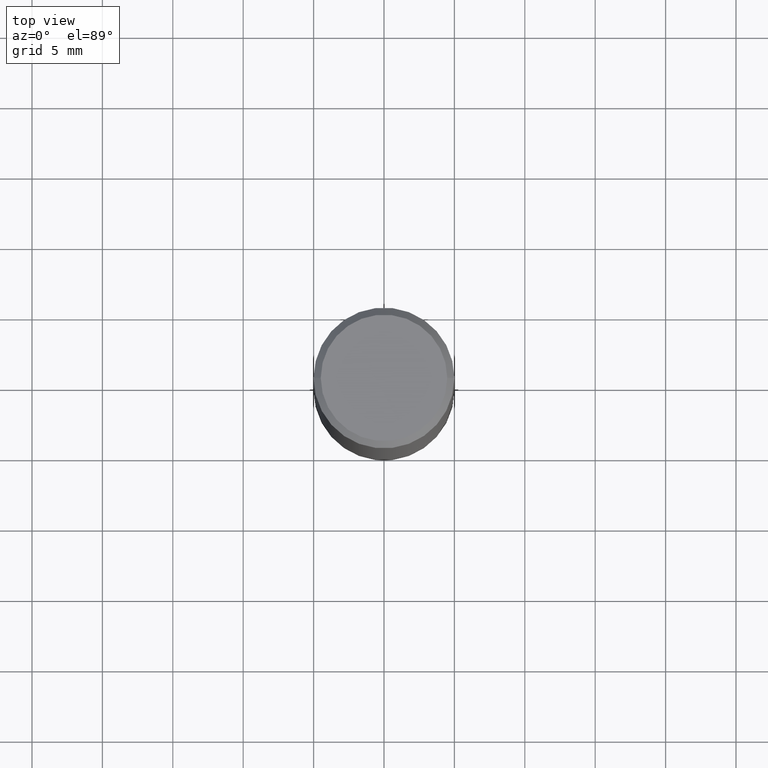
[diagram: clean part render]
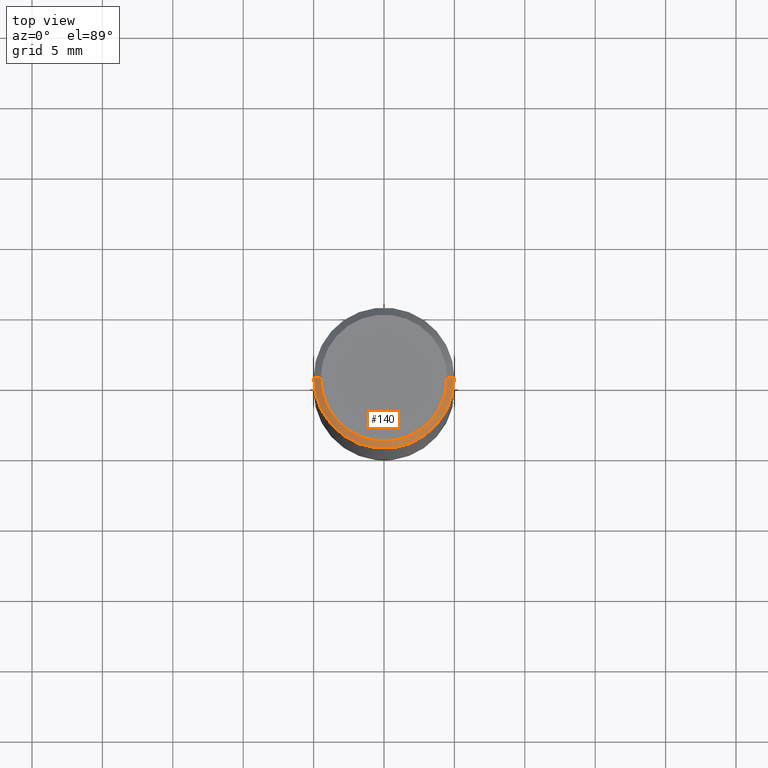
[diagram: same view with one face highlighted and labeled with its STEP entity id]
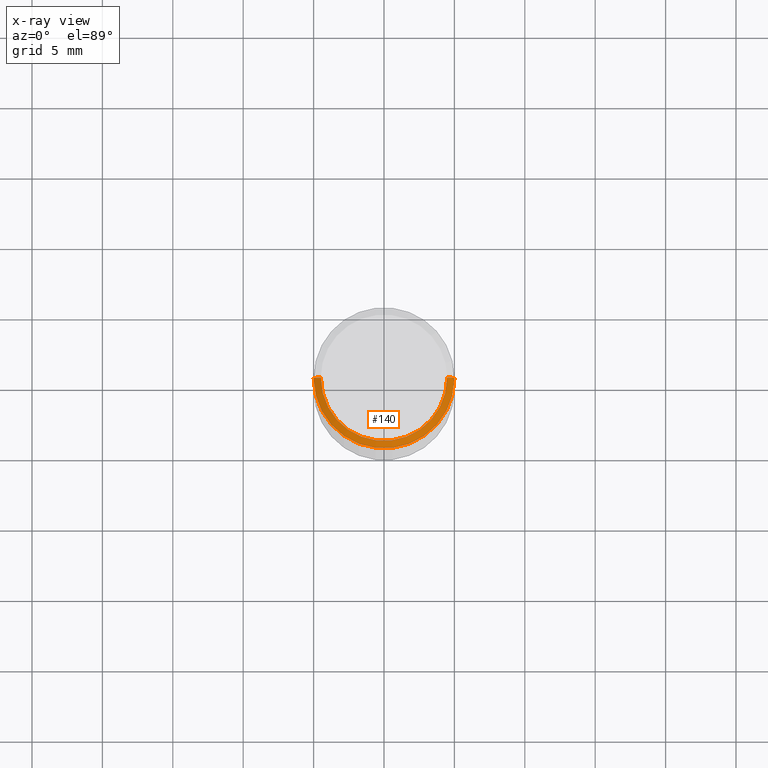
[diagram: x-ray of the same camera — body ghosted, the highlighted face saturated]
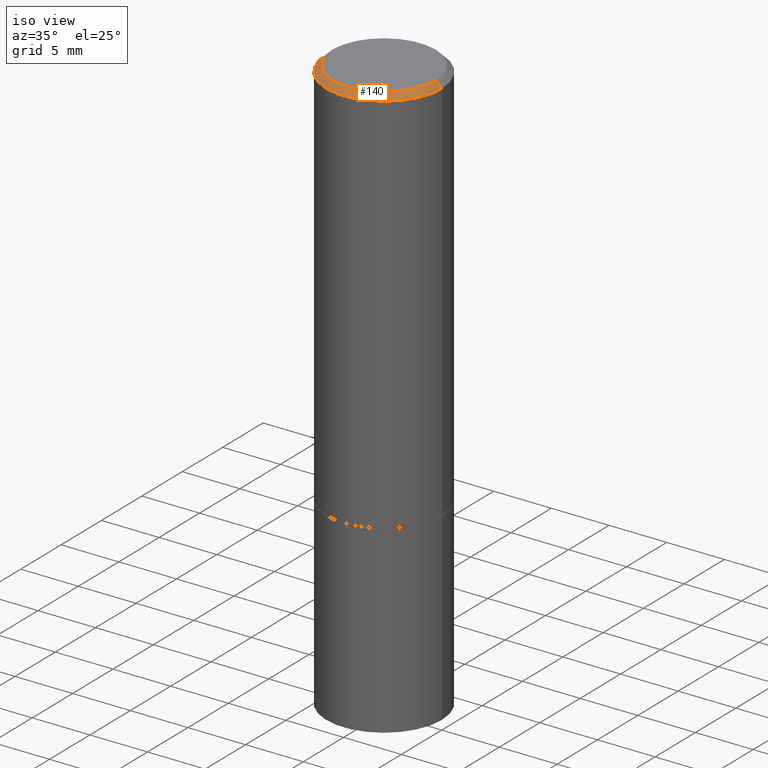
[diagram: same view with one face highlighted and labeled with its STEP entity id]
A machine part, top view. The second image highlights one B-rep face of the part: STEP entity #140.
The next image is the same camera in x-ray: the body ghosted, the highlighted face saturated — about 0% of this face is hidden behind the body in this view.
A second angle (iso view) of the same face is appended — the face is thin or edge-on in the first view.
In plain terms, the highlighted conical surface has half-angle 45 deg.
Its self-contained STEP definition (entity closure, byte-faithful):
#4 = DIRECTION ( 'NONE',  ( 1.000000000000000000, -6.982962677686266711E-15, 0.000000000000000000 ) ) ;
#7 = CARTESIAN_POINT ( 'NONE',  ( 0.1768499999999998407, -1.316798864272041155E-15, 8.922390245354091239E-30 ) ) ;
#20 = EDGE_CURVE ( 'NONE', #359, #111, #204, .T. ) ;
#26 = DIRECTION ( 'NONE',  ( 2.445468806185136597E-29, -3.491481338843145583E-15, -1.000000000000000000 ) ) ;
#38 = ORIENTED_EDGE ( 'NONE', *, *, #51, .F. ) ;
#41 = ORIENTED_EDGE ( 'NONE', *, *, #265, .F. ) ;
#45 = VECTOR ( 'NONE', #139, 39.37007874015748143 ) ;
#51 = EDGE_CURVE ( 'NONE', #86, #305, #287, .T. ) ;
#53 = CARTESIAN_POINT ( 'NONE',  ( 0.1968499999999998307, -1.420318657638187938E-15, -0.02000000000000004552 ) ) ;
#64 = CIRCLE ( 'NONE', #315, 0.1768499999999998407 ) ;
#66 = DIRECTION ( 'NONE',  ( -1.000000000000000000, 6.982962677686266711E-15, 0.000000000000000000 ) ) ;
#83 = DIRECTION ( 'NONE',  ( -0.7071067811865465735, 2.468850131082246805E-15, -0.7071067811865484609 ) ) ;
#86 = VERTEX_POINT ( 'NONE', #7 ) ;
#89 = CARTESIAN_POINT ( 'NONE',  ( 0.1968499999999998307, -1.420318657638187938E-15, -0.02000000000000004552 ) ) ;
#111 = VERTEX_POINT ( 'NONE', #316 ) ;
#119 = CARTESIAN_POINT ( 'NONE',  ( -0.1768499999999998407, 1.269851762937246464E-15, -8.758475317130876682E-30 ) ) ;
#120 = CARTESIAN_POINT ( 'NONE',  ( 4.890937612370284544E-31, -6.982962677686307633E-17, -0.02000000000000004552 ) ) ;
#130 = EDGE_CURVE ( 'NONE', #111, #305, #194, .T. ) ;
#139 = DIRECTION ( 'NONE',  ( 0.7071067811865465735, -7.319954787623252890E-15, -0.7071067811865484609 ) ) ;
#140 = ADVANCED_FACE ( 'NONE', ( #273 ), #337, .T. ) ;
#167 = ORIENTED_EDGE ( 'NONE', *, *, #130, .T. ) ;
#191 = CARTESIAN_POINT ( 'NONE',  ( 0.000000000000000000, 0.000000000000000000, 0.000000000000000000 ) ) ;
#194 = CIRCLE ( 'NONE', #200, 0.1968499999999998307 ) ;
#199 = CARTESIAN_POINT ( 'NONE',  ( -0.1968499999999998307, 1.304766576325677324E-15, -0.02000000000000004552 ) ) ;
#200 = AXIS2_PLACEMENT_3D ( 'NONE', #120, #314, #4 ) ;
#204 = LINE ( 'NONE', #199, #209 ) ;
#206 = EDGE_LOOP ( 'NONE', ( #38, #41, #311, #167 ) ) ;
#209 = VECTOR ( 'NONE', #83, 39.37007874015748143 ) ;
#265 = EDGE_CURVE ( 'NONE', #359, #86, #64, .T. ) ;
#273 = FACE_OUTER_BOUND ( 'NONE', #206, .T. ) ;
#287 = LINE ( 'NONE', #53, #45 ) ;
#302 = AXIS2_PLACEMENT_3D ( 'NONE', #317, #26, #66 ) ;
#303 = DIRECTION ( 'NONE',  ( -2.445468806185136597E-29, 3.491481338843145583E-15, 1.000000000000000000 ) ) ;
#305 = VERTEX_POINT ( 'NONE', #89 ) ;
#311 = ORIENTED_EDGE ( 'NONE', *, *, #20, .T. ) ;
#314 = DIRECTION ( 'NONE',  ( -2.445468806185136597E-29, 3.491481338843145583E-15, 1.000000000000000000 ) ) ;
#315 = AXIS2_PLACEMENT_3D ( 'NONE', #191, #303, #355 ) ;
#316 = CARTESIAN_POINT ( 'NONE',  ( -0.1968499999999998307, 1.304766576325677324E-15, -0.02000000000000004552 ) ) ;
#317 = CARTESIAN_POINT ( 'NONE',  ( 4.890937612370284544E-31, -6.982962677686307633E-17, -0.02000000000000004552 ) ) ;
#337 = CONICAL_SURFACE ( 'NONE', #302, 0.1968499999999998307, 0.7853981633974469467 ) ;
#355 = DIRECTION ( 'NONE',  ( 1.000000000000000000, -6.982962677686266711E-15, 4.876176775795936353E-29 ) ) ;
#359 = VERTEX_POINT ( 'NONE', #119 ) ;